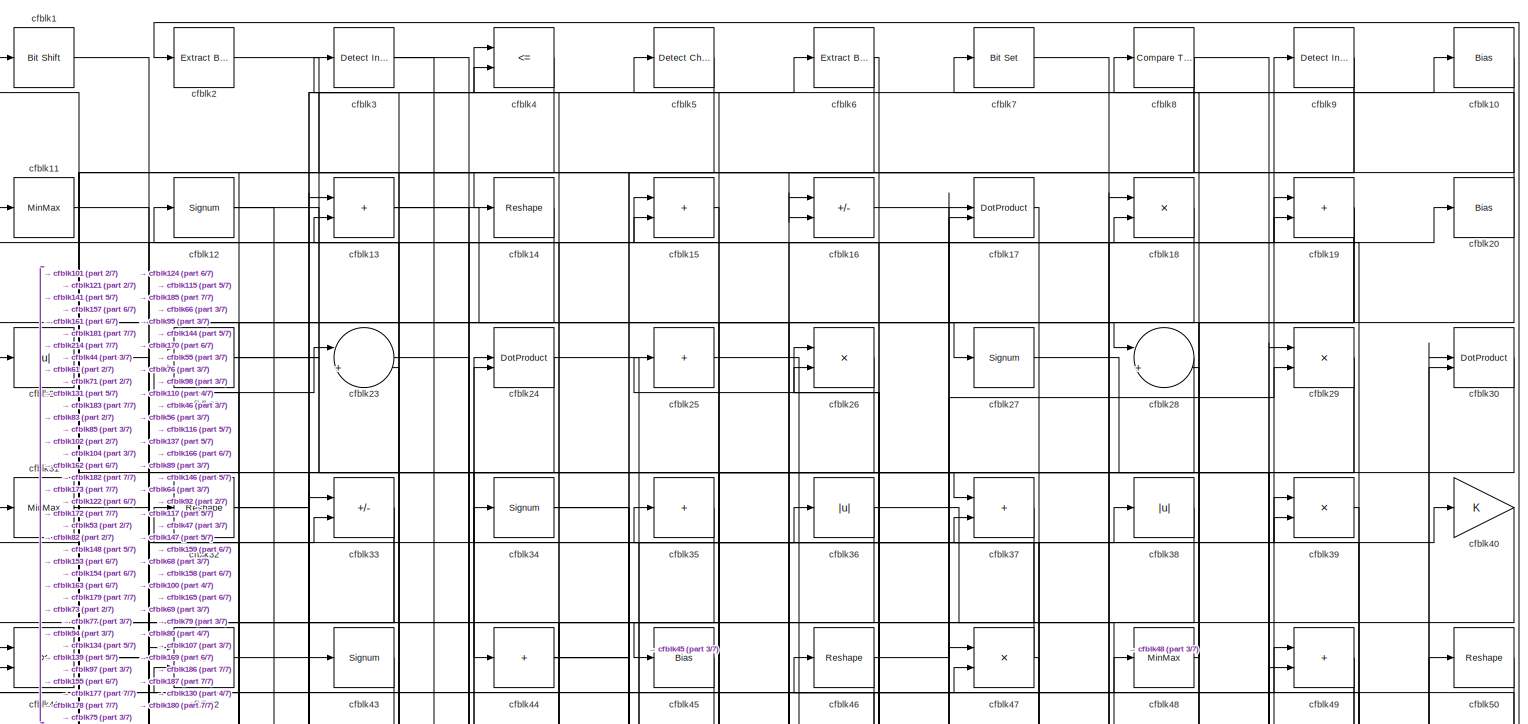
[diagram: root canvas - part 1/7, full width, top band]
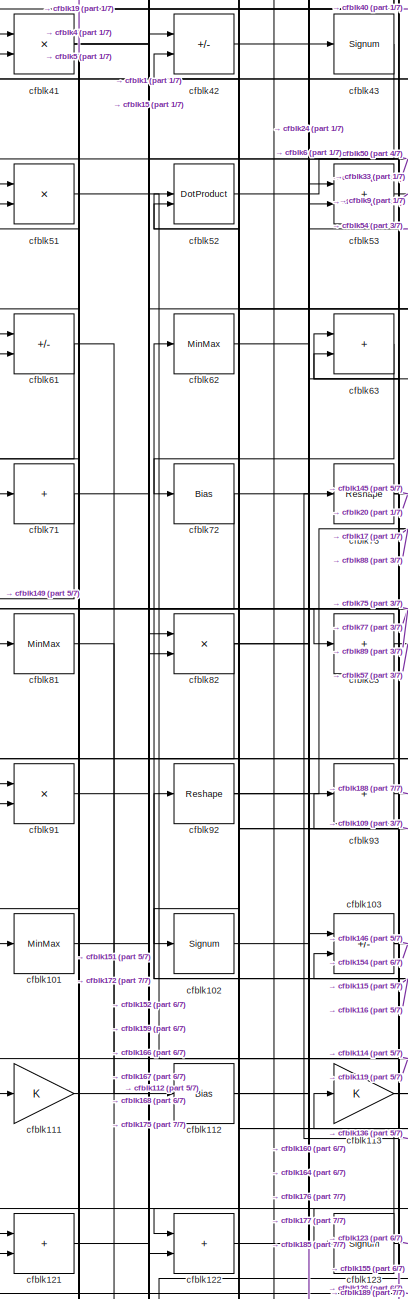
[diagram: root canvas - part 2/7, middle left region]
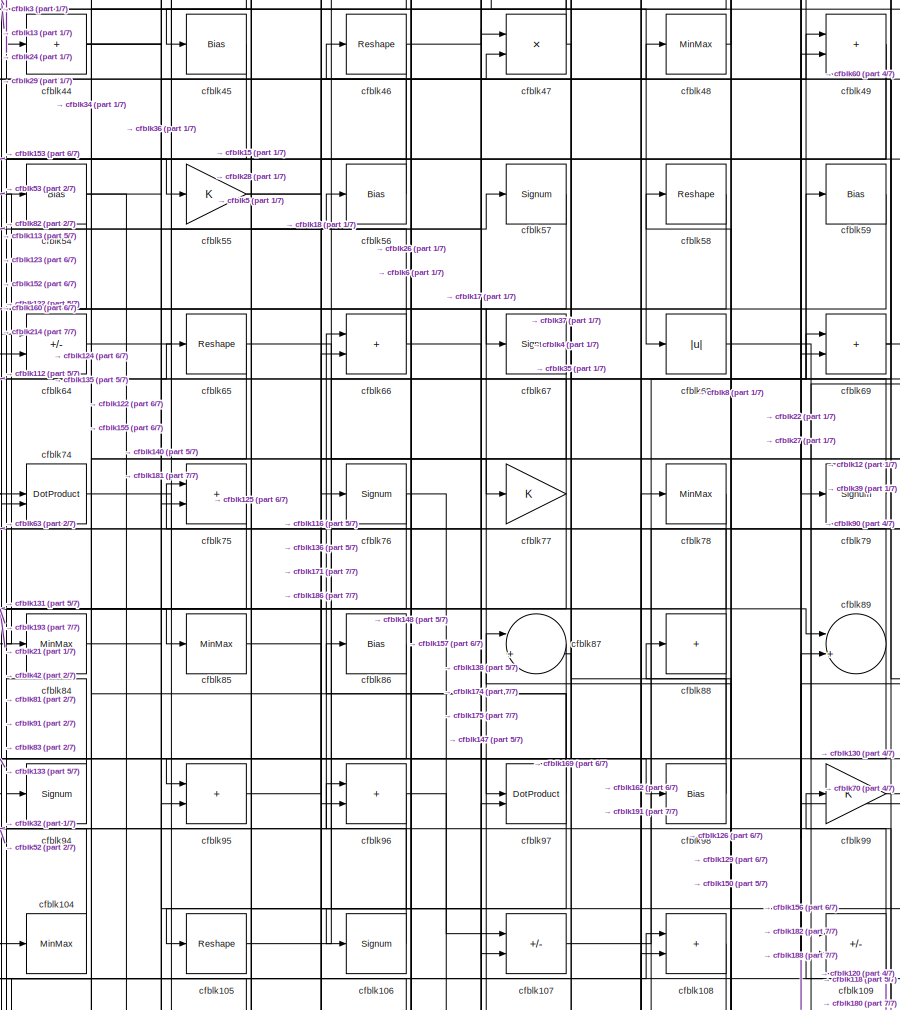
[diagram: root canvas - part 3/7, central region]
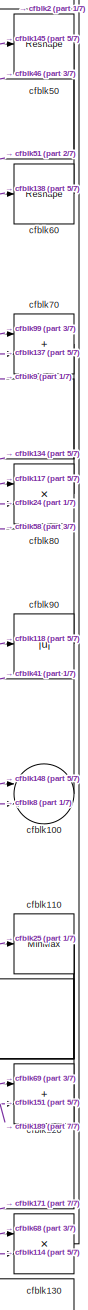
[diagram: root canvas - part 4/7, middle right region]
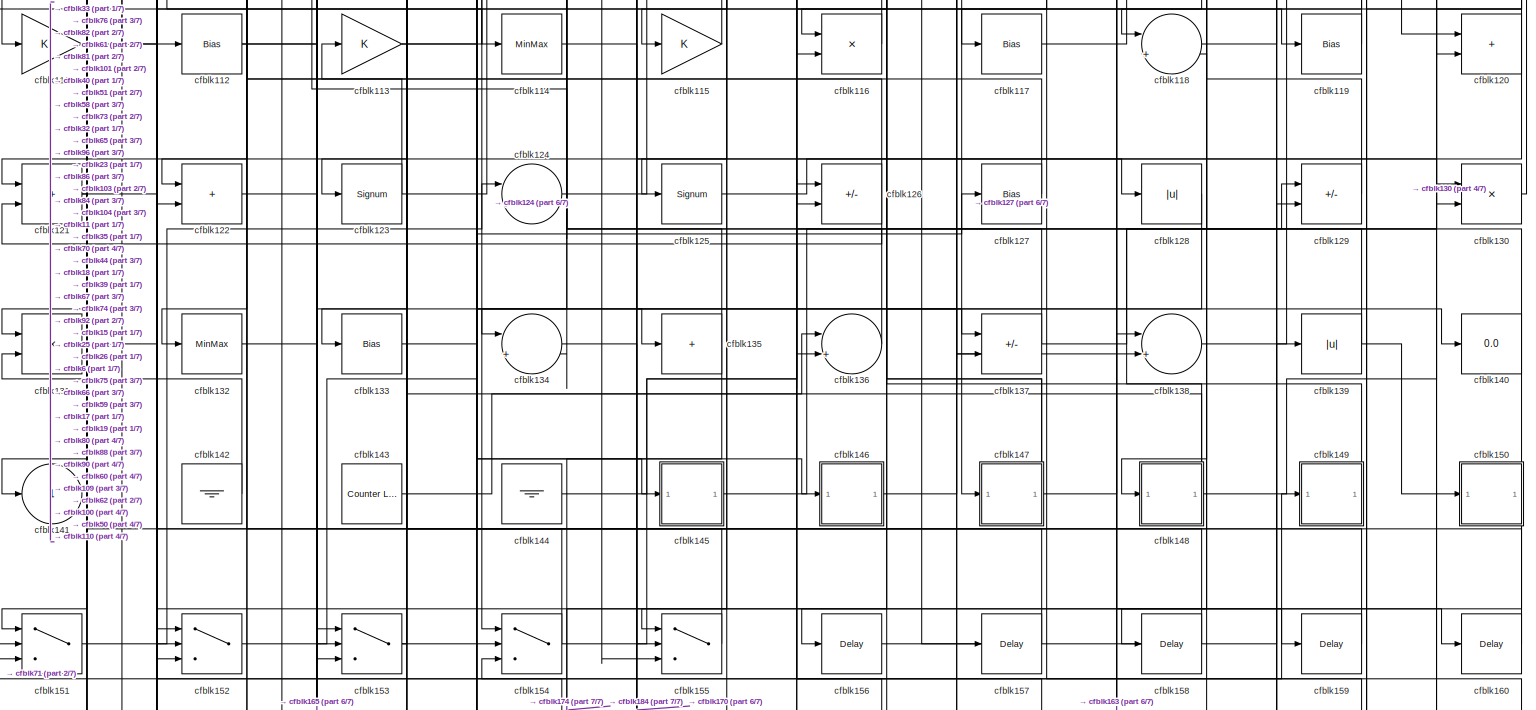
[diagram: root canvas - part 5/7, full width, middle band]
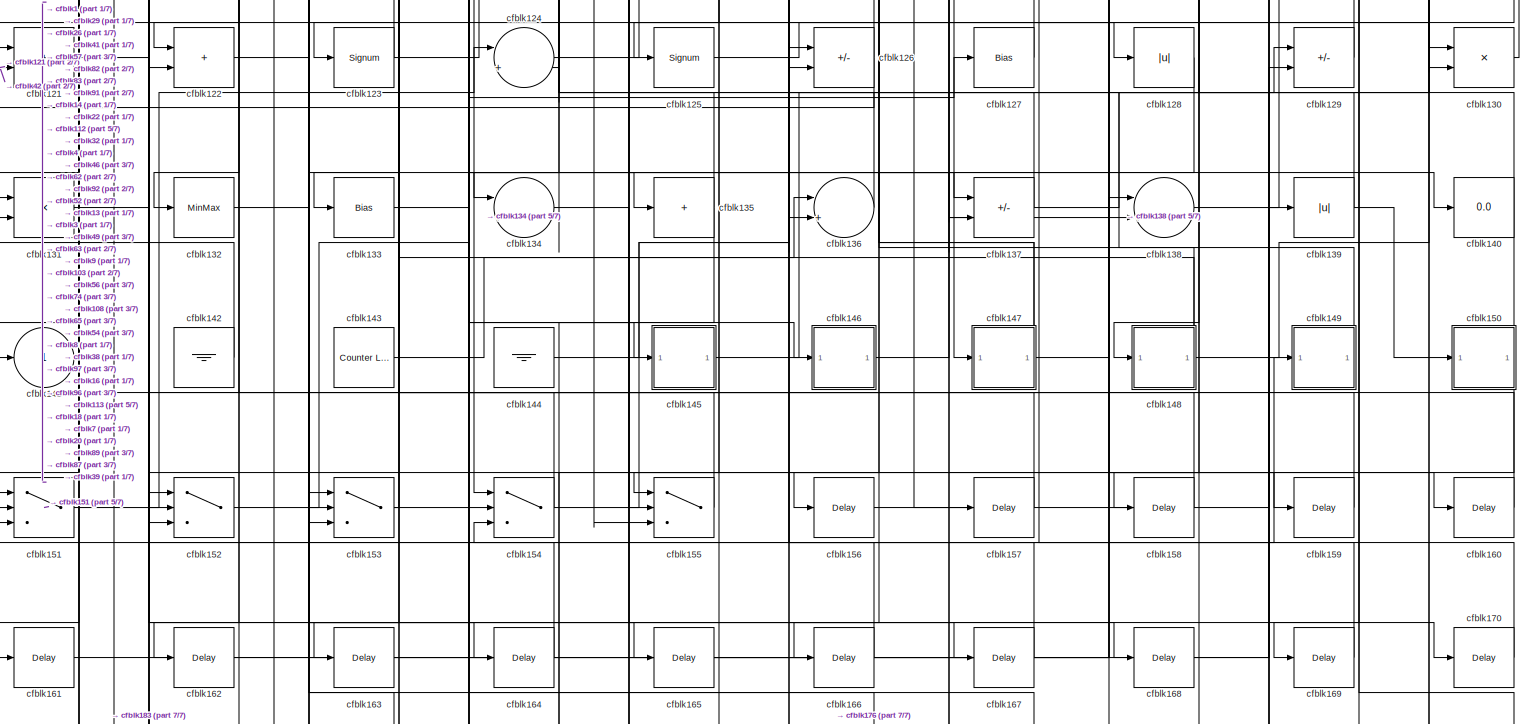
[diagram: root canvas - part 6/7, full width, middle band]
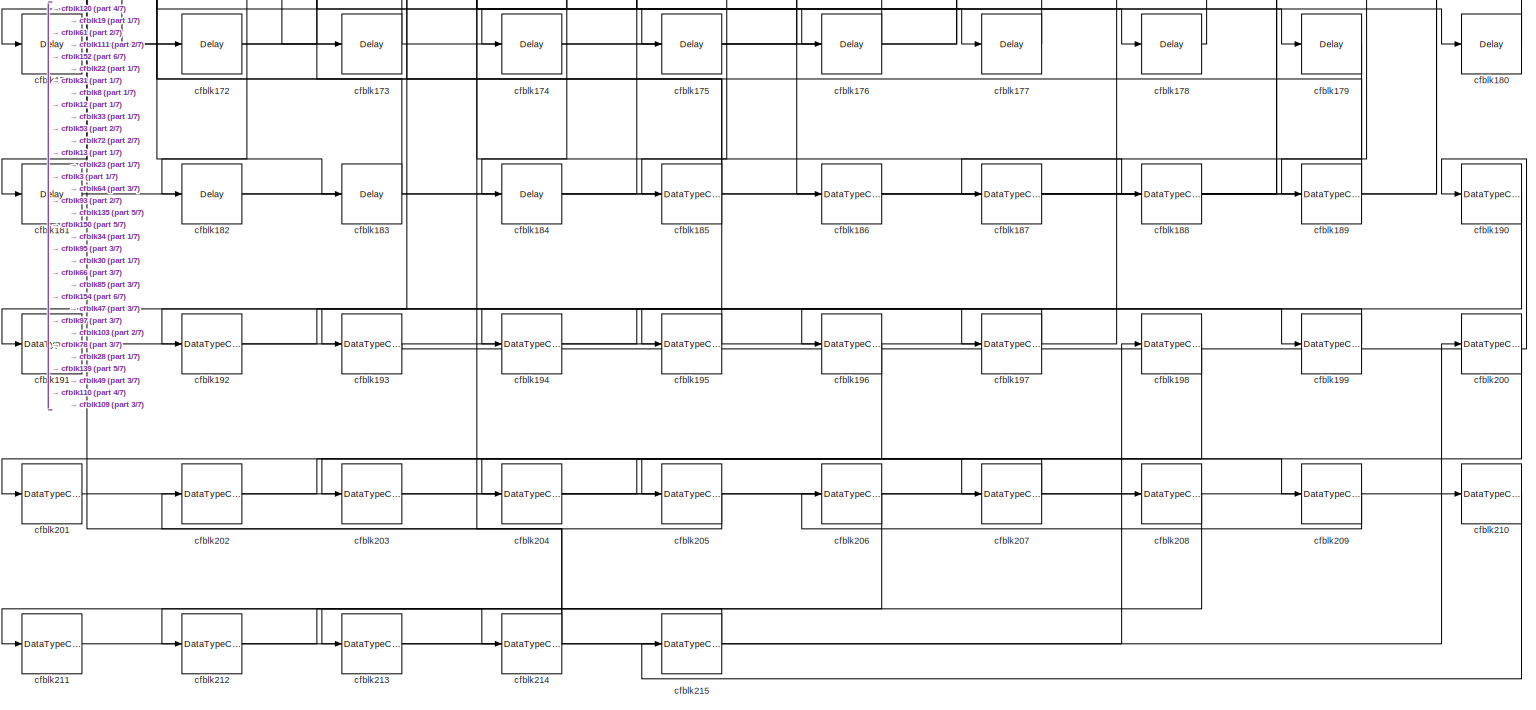
[diagram: root canvas - part 7/7, full width, bottom band]
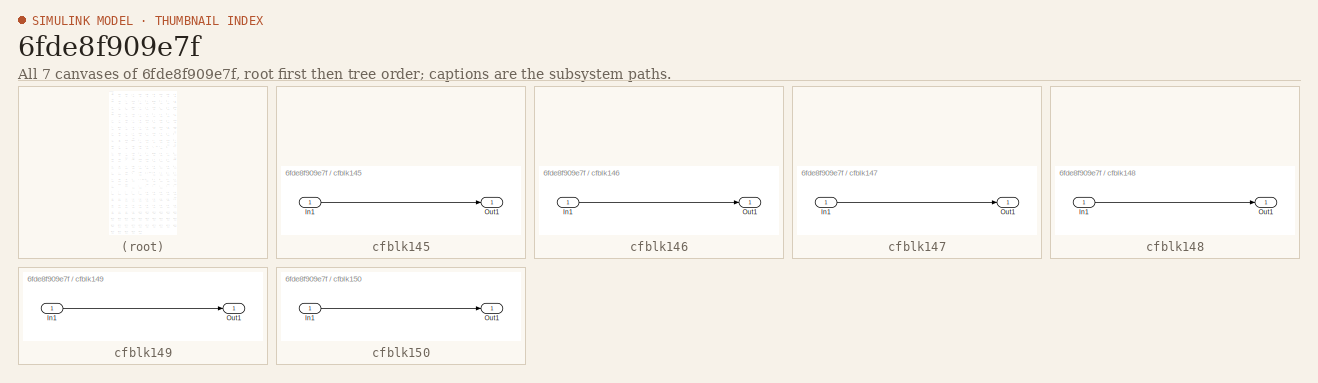
[diagram: thumbnail index - all 7 canvases of the model, root first then tree order]
MODEL slx_6fde8f909e7f
KIND model
CONFIG AbsTol = auto
CONFIG EnableMultiTasking = off
CONFIG FixedStep = auto
CONFIG MaxStep = auto
CONFIG MinStep = auto
CONFIG RelTol = 1e-3
CONFIG SampleTimeConstraint = Unconstrained
CONFIG SolverName = VariableStepAuto
CONFIG StartTime = 0.0
CONFIG StopTime = 10.0
BLOCK [Reference] cfblk1  REF=hdlsllib/Logic and Bit
Operations/Bit Shift
  SourceBlock = hdlsllib/Logic and Bit\nOperations/Bit Shift
  SourceType = Bit Shift
BLOCK [Bias] cfblk10
  Bias = 0.0
  SaturateOnIntegerOverflow = off
BLOCK [Sum] cfblk100
  Inputs = |++
BLOCK [MinMax] cfblk101
BLOCK [Signum] cfblk102
BLOCK [Sum] cfblk103
  IconShape = rectangular
  Inputs = +-
BLOCK [MinMax] cfblk104
BLOCK [Reshape] cfblk105
BLOCK [Signum] cfblk106
BLOCK [Sum] cfblk107
  IconShape = rectangular
  Inputs = +-
BLOCK [Sum] cfblk108
  IconShape = rectangular
BLOCK [Sum] cfblk109
  IconShape = rectangular
  Inputs = +-
BLOCK [MinMax] cfblk11
BLOCK [MinMax] cfblk110
BLOCK [Gain] cfblk111
BLOCK [Bias] cfblk112
  Bias = 0.0
  SaturateOnIntegerOverflow = off
BLOCK [Gain] cfblk113
BLOCK [MinMax] cfblk114
BLOCK [Gain] cfblk115
BLOCK [Product] cfblk116
  Inputs = */
  RndMeth = Zero
  SaturateOnIntegerOverflow = on
BLOCK [Bias] cfblk117
  Bias = 0.0
  SaturateOnIntegerOverflow = off
BLOCK [Sum] cfblk118
  Inputs = |++
BLOCK [Bias] cfblk119
  Bias = 0.0
  SaturateOnIntegerOverflow = off
BLOCK [Signum] cfblk12
BLOCK [Sum] cfblk120
  IconShape = rectangular
BLOCK [Sum] cfblk121
  IconShape = rectangular
BLOCK [Sum] cfblk122
  IconShape = rectangular
BLOCK [Signum] cfblk123
BLOCK [Sum] cfblk124
  Inputs = |++
BLOCK [Signum] cfblk125
BLOCK [Sum] cfblk126
  IconShape = rectangular
  Inputs = +-
BLOCK [Bias] cfblk127
  Bias = 0.0
  SaturateOnIntegerOverflow = off
BLOCK [Abs] cfblk128
  SaturateOnIntegerOverflow = off
BLOCK [Sum] cfblk129
  IconShape = rectangular
  Inputs = +-
BLOCK [Sum] cfblk13
  IconShape = rectangular
BLOCK [Product] cfblk130
  Inputs = */
  RndMeth = Zero
  SaturateOnIntegerOverflow = on
BLOCK [Product] cfblk131
  Inputs = */
  RndMeth = Zero
  SaturateOnIntegerOverflow = on
BLOCK [MinMax] cfblk132
BLOCK [Bias] cfblk133
  Bias = 0.0
  SaturateOnIntegerOverflow = off
BLOCK [Sum] cfblk134
  Inputs = |++
BLOCK [Sum] cfblk135
  IconShape = rectangular
  Inputs = +
BLOCK [Sum] cfblk136
  Inputs = |++
BLOCK [Sum] cfblk137
  IconShape = rectangular
  Inputs = +-
BLOCK [Sum] cfblk138
  Inputs = |++
BLOCK [Abs] cfblk139
  SaturateOnIntegerOverflow = off
BLOCK [Reshape] cfblk14
BLOCK [Display] cfblk140
  Decimation = 1
BLOCK [Outport] cfblk141
  VectorParamsAs1DForOutWhenUnconnected = off
BLOCK [Ground] cfblk142
BLOCK [Reference] cfblk143  REF=hdlsllib/Sources/Counter
Limited
  SourceBlock = hdlsllib/Sources/Counter\nLimited
  SourceType = Counter Limited
BLOCK [Ground] cfblk144
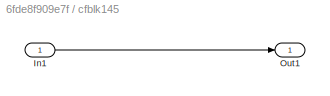
BLOCK [SubSystem] cfblk145
  LibrarySourceBlock = hdlsllib/Ports &\nSubsystems/Subsystem
BLOCK [Inport] cfblk145/In1
BLOCK [Outport] cfblk145/Out1
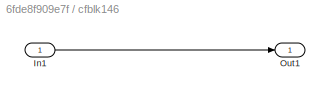
BLOCK [SubSystem] cfblk146
  LibrarySourceBlock = hdlsllib/Ports &\nSubsystems/Subsystem
BLOCK [Inport] cfblk146/In1
BLOCK [Outport] cfblk146/Out1
BLOCK [SubSystem] cfblk147
  LibrarySourceBlock = hdlsllib/Ports &\nSubsystems/Subsystem
BLOCK [Inport] cfblk147/In1
BLOCK [Outport] cfblk147/Out1
BLOCK [SubSystem] cfblk148
  LibrarySourceBlock = hdlsllib/Ports &\nSubsystems/Subsystem
BLOCK [Inport] cfblk148/In1
BLOCK [Outport] cfblk148/Out1
BLOCK [SubSystem] cfblk149
  LibrarySourceBlock = hdlsllib/Ports &\nSubsystems/Subsystem
BLOCK [Inport] cfblk149/In1
BLOCK [Outport] cfblk149/Out1
BLOCK [Sum] cfblk15
  IconShape = rectangular
BLOCK [SubSystem] cfblk150
  LibrarySourceBlock = hdlsllib/Ports &\nSubsystems/Subsystem
BLOCK [Inport] cfblk150/In1
BLOCK [Outport] cfblk150/Out1
BLOCK [Switch] cfblk151
  InputSameDT = off
  SaturateOnIntegerOverflow = off
BLOCK [Switch] cfblk152
  InputSameDT = off
  SaturateOnIntegerOverflow = off
BLOCK [Switch] cfblk153
  InputSameDT = off
  SaturateOnIntegerOverflow = off
BLOCK [Switch] cfblk154
  InputSameDT = off
  SaturateOnIntegerOverflow = off
BLOCK [Switch] cfblk155
  InputSameDT = off
  SaturateOnIntegerOverflow = off
BLOCK [Delay] cfblk156
  InputPortMap = u0
  SampleTime = 1
BLOCK [Delay] cfblk157
  InputPortMap = u0
  SampleTime = 1
BLOCK [Delay] cfblk158
  InputPortMap = u0
  SampleTime = 1
BLOCK [Delay] cfblk159
  InputPortMap = u0
  SampleTime = 1
BLOCK [Sum] cfblk16
  IconShape = rectangular
  Inputs = +-
BLOCK [Delay] cfblk160
  InputPortMap = u0
  SampleTime = 1
BLOCK [Delay] cfblk161
  InputPortMap = u0
  SampleTime = 1
BLOCK [Delay] cfblk162
  InputPortMap = u0
  SampleTime = 1
BLOCK [Delay] cfblk163
  InputPortMap = u0
  SampleTime = 1
BLOCK [Delay] cfblk164
  InputPortMap = u0
  SampleTime = 1
BLOCK [Delay] cfblk165
  InputPortMap = u0
  SampleTime = 1
BLOCK [Delay] cfblk166
  InputPortMap = u0
  SampleTime = 1
BLOCK [Delay] cfblk167
  InputPortMap = u0
  SampleTime = 1
BLOCK [Delay] cfblk168
  InputPortMap = u0
  SampleTime = 1
BLOCK [Delay] cfblk169
  InputPortMap = u0
  SampleTime = 1
BLOCK [DotProduct] cfblk17
  OutDataTypeStr = Inherit: Inherit via internal rule
BLOCK [Delay] cfblk170
  InputPortMap = u0
  SampleTime = 1
BLOCK [Delay] cfblk171
  InputPortMap = u0
  SampleTime = 1
BLOCK [Delay] cfblk172
  InputPortMap = u0
  SampleTime = 1
BLOCK [Delay] cfblk173
  InputPortMap = u0
  SampleTime = 1
BLOCK [Delay] cfblk174
  InputPortMap = u0
  SampleTime = 1
BLOCK [Delay] cfblk175
  InputPortMap = u0
  SampleTime = 1
BLOCK [Delay] cfblk176
  InputPortMap = u0
  SampleTime = 1
BLOCK [Delay] cfblk177
  InputPortMap = u0
  SampleTime = 1
BLOCK [Delay] cfblk178
  InputPortMap = u0
  SampleTime = 1
BLOCK [Delay] cfblk179
  InputPortMap = u0
  SampleTime = 1
BLOCK [Product] cfblk18
  Inputs = */
  RndMeth = Zero
  SaturateOnIntegerOverflow = on
BLOCK [Delay] cfblk180
  InputPortMap = u0
  SampleTime = 1
BLOCK [Delay] cfblk181
  InputPortMap = u0
  SampleTime = 1
BLOCK [Delay] cfblk182
  InputPortMap = u0
  SampleTime = 1
BLOCK [Delay] cfblk183
  InputPortMap = u0
  SampleTime = 1
BLOCK [Delay] cfblk184
  InputPortMap = u0
  SampleTime = 1
BLOCK [DataTypeConversion] cfblk185
  RndMeth = Floor
  SaturateOnIntegerOverflow = off
BLOCK [DataTypeConversion] cfblk186
  OutDataTypeStr = uint8
  RndMeth = Floor
  SaturateOnIntegerOverflow = off
BLOCK [DataTypeConversion] cfblk187
  OutDataTypeStr = uint8
  RndMeth = Floor
  SaturateOnIntegerOverflow = off
BLOCK [DataTypeConversion] cfblk188
  OutDataTypeStr = uint8
  RndMeth = Floor
  SaturateOnIntegerOverflow = off
BLOCK [DataTypeConversion] cfblk189
  OutDataTypeStr = uint8
  RndMeth = Floor
  SaturateOnIntegerOverflow = off
BLOCK [Sum] cfblk19
  IconShape = rectangular
BLOCK [DataTypeConversion] cfblk190
  RndMeth = Floor
  SaturateOnIntegerOverflow = off
BLOCK [DataTypeConversion] cfblk191
  OutDataTypeStr = uint8
  RndMeth = Floor
  SaturateOnIntegerOverflow = off
BLOCK [DataTypeConversion] cfblk192
  RndMeth = Floor
  SaturateOnIntegerOverflow = off
BLOCK [DataTypeConversion] cfblk193
  OutDataTypeStr = uint8
  RndMeth = Floor
  SaturateOnIntegerOverflow = off
BLOCK [DataTypeConversion] cfblk194
  RndMeth = Floor
  SaturateOnIntegerOverflow = off
BLOCK [DataTypeConversion] cfblk195
  OutDataTypeStr = uint8
  RndMeth = Floor
  SaturateOnIntegerOverflow = off
BLOCK [DataTypeConversion] cfblk196
  RndMeth = Floor
  SaturateOnIntegerOverflow = off
BLOCK [DataTypeConversion] cfblk197
  OutDataTypeStr = uint8
  RndMeth = Floor
  SaturateOnIntegerOverflow = off
BLOCK [DataTypeConversion] cfblk198
  RndMeth = Floor
  SaturateOnIntegerOverflow = off
BLOCK [DataTypeConversion] cfblk199
  OutDataTypeStr = uint8
  RndMeth = Floor
  SaturateOnIntegerOverflow = off
BLOCK [Reference] cfblk2  REF=simulink/Logic and Bit
Operations/Extract Bits
  LibrarySourceBlock = hdlsllib/Logic and Bit\nOperations/Extract Bits
  SourceBlock = simulink/Logic and Bit\nOperations/Extract Bits
  SourceType = Extract Bits
BLOCK [Bias] cfblk20
  Bias = 0.0
  SaturateOnIntegerOverflow = off
BLOCK [DataTypeConversion] cfblk200
  RndMeth = Floor
  SaturateOnIntegerOverflow = off
BLOCK [DataTypeConversion] cfblk201
  OutDataTypeStr = uint8
  RndMeth = Floor
  SaturateOnIntegerOverflow = off
BLOCK [DataTypeConversion] cfblk202
  RndMeth = Floor
  SaturateOnIntegerOverflow = off
BLOCK [DataTypeConversion] cfblk203
  OutDataTypeStr = uint8
  RndMeth = Floor
  SaturateOnIntegerOverflow = off
BLOCK [DataTypeConversion] cfblk204
  RndMeth = Floor
  SaturateOnIntegerOverflow = off
BLOCK [DataTypeConversion] cfblk205
  OutDataTypeStr = uint8
  RndMeth = Floor
  SaturateOnIntegerOverflow = off
BLOCK [DataTypeConversion] cfblk206
  RndMeth = Floor
  SaturateOnIntegerOverflow = off
BLOCK [DataTypeConversion] cfblk207
  OutDataTypeStr = uint8
  RndMeth = Floor
  SaturateOnIntegerOverflow = off
BLOCK [DataTypeConversion] cfblk208
  RndMeth = Floor
  SaturateOnIntegerOverflow = off
BLOCK [DataTypeConversion] cfblk209
  OutDataTypeStr = uint8
  RndMeth = Floor
  SaturateOnIntegerOverflow = off
BLOCK [Abs] cfblk21
  SaturateOnIntegerOverflow = off
BLOCK [DataTypeConversion] cfblk210
  RndMeth = Floor
  SaturateOnIntegerOverflow = off
BLOCK [DataTypeConversion] cfblk211
  OutDataTypeStr = uint8
  RndMeth = Floor
  SaturateOnIntegerOverflow = off
BLOCK [DataTypeConversion] cfblk212
  RndMeth = Floor
  SaturateOnIntegerOverflow = off
BLOCK [DataTypeConversion] cfblk213
  OutDataTypeStr = uint8
  RndMeth = Floor
  SaturateOnIntegerOverflow = off
BLOCK [DataTypeConversion] cfblk214
  RndMeth = Floor
  SaturateOnIntegerOverflow = off
BLOCK [DataTypeConversion] cfblk215
  OutDataTypeStr = uint8
  RndMeth = Floor
  SaturateOnIntegerOverflow = off
BLOCK [Sum] cfblk22
  IconShape = rectangular
BLOCK [Sum] cfblk23
  Inputs = |++
BLOCK [DotProduct] cfblk24
  OutDataTypeStr = Inherit: Inherit via internal rule
BLOCK [Sum] cfblk25
  IconShape = rectangular
  Inputs = +
BLOCK [Product] cfblk26
  Inputs = */
  RndMeth = Zero
  SaturateOnIntegerOverflow = on
BLOCK [Signum] cfblk27
BLOCK [Sum] cfblk28
  Inputs = |++
BLOCK [Product] cfblk29
  Inputs = */
  RndMeth = Zero
  SaturateOnIntegerOverflow = on
BLOCK [Reference] cfblk3  REF=simulink/Logic and Bit
Operations/Detect
Increase
  LibrarySourceBlock = hdlsllib/Logic and Bit\nOperations/Detect\nIncrease
  SourceBlock = simulink/Logic and Bit\nOperations/Detect\nIncrease
  SourceType = Detect Increase
BLOCK [DotProduct] cfblk30
  OutDataTypeStr = Inherit: Inherit via internal rule
BLOCK [MinMax] cfblk31
BLOCK [Reshape] cfblk32
BLOCK [Sum] cfblk33
  IconShape = rectangular
  Inputs = +-
BLOCK [Signum] cfblk34
BLOCK [Sum] cfblk35
  IconShape = rectangular
  Inputs = +
BLOCK [Abs] cfblk36
  SaturateOnIntegerOverflow = off
BLOCK [Sum] cfblk37
  IconShape = rectangular
BLOCK [Abs] cfblk38
  SaturateOnIntegerOverflow = off
BLOCK [Product] cfblk39
  Inputs = */
  RndMeth = Zero
  SaturateOnIntegerOverflow = on
BLOCK [RelationalOperator] cfblk4
  InputSameDT = off
  Operator = <=
  OutDataTypeStr = boolean
BLOCK [Gain] cfblk40
BLOCK [Product] cfblk41
  Inputs = */
  RndMeth = Zero
  SaturateOnIntegerOverflow = on
BLOCK [Sum] cfblk42
  IconShape = rectangular
  Inputs = +-
BLOCK [Signum] cfblk43
BLOCK [Sum] cfblk44
  IconShape = rectangular
  Inputs = +
BLOCK [Bias] cfblk45
  Bias = 0.0
  SaturateOnIntegerOverflow = off
BLOCK [Reshape] cfblk46
BLOCK [Product] cfblk47
  Inputs = */
  RndMeth = Zero
  SaturateOnIntegerOverflow = on
BLOCK [MinMax] cfblk48
BLOCK [Sum] cfblk49
  IconShape = rectangular
BLOCK [Reference] cfblk5  REF=simulink/Logic and Bit
Operations/Detect
Change
  LibrarySourceBlock = hdlsllib/Logic and Bit\nOperations/Detect\nChange
  SourceBlock = simulink/Logic and Bit\nOperations/Detect\nChange
  SourceType = Detect Change
BLOCK [Reshape] cfblk50
BLOCK [Product] cfblk51
  Inputs = */
  RndMeth = Zero
  SaturateOnIntegerOverflow = on
BLOCK [DotProduct] cfblk52
  OutDataTypeStr = Inherit: Inherit via internal rule
BLOCK [Sum] cfblk53
  IconShape = rectangular
BLOCK [Bias] cfblk54
  Bias = 0.0
  SaturateOnIntegerOverflow = off
BLOCK [Gain] cfblk55
BLOCK [Bias] cfblk56
  Bias = 0.0
  SaturateOnIntegerOverflow = off
BLOCK [Signum] cfblk57
BLOCK [Reshape] cfblk58
BLOCK [Bias] cfblk59
  Bias = 0.0
  SaturateOnIntegerOverflow = off
BLOCK [Reference] cfblk6  REF=simulink/Logic and Bit
Operations/Extract Bits
  LibrarySourceBlock = hdlsllib/Logic and Bit\nOperations/Extract Bits
  SourceBlock = simulink/Logic and Bit\nOperations/Extract Bits
  SourceType = Extract Bits
BLOCK [Reshape] cfblk60
BLOCK [Sum] cfblk61
  IconShape = rectangular
  Inputs = +-
BLOCK [MinMax] cfblk62
BLOCK [Sum] cfblk63
  IconShape = rectangular
BLOCK [Sum] cfblk64
  IconShape = rectangular
  Inputs = +-
BLOCK [Reshape] cfblk65
BLOCK [Sum] cfblk66
  IconShape = rectangular
BLOCK [Signum] cfblk67
BLOCK [Abs] cfblk68
  SaturateOnIntegerOverflow = off
BLOCK [Sum] cfblk69
  IconShape = rectangular
BLOCK [Reference] cfblk7  REF=simulink/Logic and Bit
Operations/Bit Set
  LibrarySourceBlock = hdlsllib/Logic and Bit\nOperations/Bit Set
  SourceBlock = simulink/Logic and Bit\nOperations/Bit Set
  SourceType = Bit Set
BLOCK [Sum] cfblk70
  IconShape = rectangular
BLOCK [Sum] cfblk71
  IconShape = rectangular
  Inputs = +
BLOCK [Bias] cfblk72
  Bias = 0.0
  SaturateOnIntegerOverflow = off
BLOCK [Reshape] cfblk73
BLOCK [DotProduct] cfblk74
  OutDataTypeStr = Inherit: Inherit via internal rule
BLOCK [Sum] cfblk75
  IconShape = rectangular
BLOCK [Signum] cfblk76
BLOCK [Gain] cfblk77
BLOCK [MinMax] cfblk78
BLOCK [Signum] cfblk79
BLOCK [Reference] cfblk8  REF=hdlsllib/Logic and Bit
Operations/Compare
To Constant
  SourceBlock = hdlsllib/Logic and Bit\nOperations/Compare\nTo Constant
  SourceType = Compare To Constant
BLOCK [Product] cfblk80
  Inputs = */
  RndMeth = Zero
  SaturateOnIntegerOverflow = on
BLOCK [MinMax] cfblk81
BLOCK [Product] cfblk82
  Inputs = */
  RndMeth = Zero
  SaturateOnIntegerOverflow = on
BLOCK [Sum] cfblk83
  IconShape = rectangular
  Inputs = +
BLOCK [MinMax] cfblk84
BLOCK [MinMax] cfblk85
BLOCK [Bias] cfblk86
  Bias = 0.0
  SaturateOnIntegerOverflow = off
BLOCK [Sum] cfblk87
  Inputs = |++
BLOCK [Sum] cfblk88
  IconShape = rectangular
  Inputs = +
BLOCK [Sum] cfblk89
  Inputs = |++
BLOCK [Reference] cfblk9  REF=simulink/Logic and Bit
Operations/Detect
Increase
  LibrarySourceBlock = hdlsllib/Logic and Bit\nOperations/Detect\nIncrease
  SourceBlock = simulink/Logic and Bit\nOperations/Detect\nIncrease
  SourceType = Detect Increase
BLOCK [Abs] cfblk90
  SaturateOnIntegerOverflow = off
BLOCK [Product] cfblk91
  Inputs = */
  RndMeth = Zero
  SaturateOnIntegerOverflow = on
BLOCK [Reshape] cfblk92
BLOCK [Sum] cfblk93
  IconShape = rectangular
  Inputs = +
BLOCK [Signum] cfblk94
BLOCK [Sum] cfblk95
  IconShape = rectangular
BLOCK [Sum] cfblk96
  IconShape = rectangular
BLOCK [DotProduct] cfblk97
  OutDataTypeStr = Inherit: Inherit via internal rule
BLOCK [Bias] cfblk98
  Bias = 0.0
  SaturateOnIntegerOverflow = off
BLOCK [Gain] cfblk99
LINE cfblk100:1 -> cfblk41:1
LINE cfblk101:1 -> cfblk114:1
LINE cfblk102:1 -> cfblk43:1
NET cfblk103:1 -> cfblk146:1, cfblk154:1
LINE cfblk104:1 -> cfblk32:1
LINE cfblk105:1 -> cfblk59:1
LINE cfblk106:1 -> cfblk66:1
LINE cfblk107:1 -> cfblk12:1
LINE cfblk108:1 -> cfblk126:2
NET cfblk109:1 -> cfblk118:1, cfblk52:2
LINE cfblk10:1 -> cfblk16:2
NET cfblk110:1 -> cfblk120:2, cfblk151:3, cfblk189:1
LINE cfblk111:1 -> cfblk175:1
NET cfblk112:1 -> cfblk165:1, cfblk65:1
NET cfblk113:1 -> cfblk137:1, cfblk84:1
LINE cfblk114:1 -> cfblk130:2
LINE cfblk115:1 -> cfblk103:2
LINE cfblk116:1 -> cfblk92:1
LINE cfblk117:1 -> cfblk80:1
LINE cfblk118:1 -> cfblk90:1
LINE cfblk119:1 -> cfblk62:1
LINE cfblk11:1 -> cfblk27:1
NET cfblk120:1 -> cfblk171:1, cfblk99:1
NET cfblk121:1 -> cfblk168:1, cfblk51:2
LINE cfblk122:1 -> cfblk4:2
NET cfblk123:1 -> cfblk108:1, cfblk52:1
LINE cfblk124:1 -> cfblk38:1
LINE cfblk125:1 -> cfblk128:1
NET cfblk126:1 -> cfblk121:2, cfblk42:2
LINE cfblk127:1 -> cfblk113:1
LINE cfblk128:1 -> cfblk156:1
LINE cfblk129:1 -> cfblk87:1
NET cfblk12:1 -> cfblk173:1, cfblk37:1
LINE cfblk130:1 -> cfblk2:1
LINE cfblk131:1 -> cfblk40:1
LINE cfblk132:1 -> cfblk96:1
LINE cfblk133:1 -> cfblk135:1
LINE cfblk134:1 -> cfblk170:1
NET cfblk135:1 -> cfblk104:1, cfblk174:1
LINE cfblk136:1 -> cfblk73:1
NET cfblk137:1 -> cfblk26:2, cfblk70:2
LINE cfblk138:1 -> cfblk60:1
NET cfblk139:1 -> cfblk11:1, cfblk150:1
NET cfblk13:1 -> cfblk76:1, cfblk98:1
LINE cfblk142:1 -> cfblk131:2
LINE cfblk143:1 -> cfblk136:1
LINE cfblk144:1 -> cfblk39:1
LINE cfblk145/In1:1 -> cfblk145/Out1:1
LINE cfblk145:1 -> cfblk50:1
LINE cfblk146/In1:1 -> cfblk146/Out1:1
LINE cfblk146:1 -> cfblk19:1
LINE cfblk147/In1:1 -> cfblk147/Out1:1
NET cfblk147:1 -> cfblk15:1, cfblk19:2, cfblk25:1
LINE cfblk148/In1:1 -> cfblk148/Out1:1
NET cfblk148:1 -> cfblk100:1, cfblk23:2, cfblk75:1
LINE cfblk149/In1:1 -> cfblk149/Out1:1
LINE cfblk149:1 -> cfblk118:2
LINE cfblk14:1 -> cfblk162:1
LINE cfblk150/In1:1 -> cfblk150/Out1:1
NET cfblk150:1 -> cfblk184:1, cfblk88:1
LINE cfblk151:1 -> cfblk124:1
LINE cfblk152:1 -> cfblk56:1
NET cfblk153:1 -> cfblk127:1, cfblk13:2
NET cfblk154:1 -> cfblk129:1, cfblk3:1
LINE cfblk155:1 -> cfblk63:1
LINE cfblk156:1 -> cfblk89:2
LINE cfblk157:1 -> cfblk1:1
LINE cfblk158:1 -> cfblk22:2
LINE cfblk159:1 -> cfblk42:1
LINE cfblk15:1 -> cfblk45:1
LINE cfblk160:1 -> cfblk74:1
LINE cfblk161:1 -> cfblk18:1
LINE cfblk162:1 -> cfblk108:2
LINE cfblk163:1 -> cfblk138:1
LINE cfblk164:1 -> cfblk154:3
LINE cfblk165:1 -> cfblk29:1
LINE cfblk166:1 -> cfblk82:1
LINE cfblk167:1 -> cfblk126:1
LINE cfblk168:1 -> cfblk129:2
LINE cfblk169:1 -> cfblk87:2
LINE cfblk16:1 -> cfblk28:1
LINE cfblk170:1 -> cfblk16:1
LINE cfblk171:1 -> cfblk66:2
LINE cfblk172:1 -> cfblk33:1
LINE cfblk173:1 -> cfblk13:1
LINE cfblk174:1 -> cfblk97:2
LINE cfblk175:1 -> cfblk47:1
LINE cfblk176:1 -> cfblk154:2
LINE cfblk177:1 -> cfblk103:1
LINE cfblk178:1 -> cfblk28:2
LINE cfblk179:1 -> cfblk187:1
LINE cfblk17:1 -> cfblk117:1
LINE cfblk180:1 -> cfblk109:2
LINE cfblk181:1 -> cfblk95:2
LINE cfblk182:1 -> cfblk49:2
LINE cfblk183:1 -> cfblk152:1
LINE cfblk184:1 -> cfblk139:1
NET cfblk185:1 -> cfblk191:1, cfblk22:1, cfblk53:1
LINE cfblk186:1 -> cfblk30:1
LINE cfblk187:1 -> cfblk30:2
LINE cfblk188:1 -> cfblk109:1
LINE cfblk189:1 -> cfblk93:1
LINE cfblk18:1 -> cfblk115:1
LINE cfblk190:1 -> cfblk195:1
LINE cfblk191:1 -> cfblk78:1
LINE cfblk192:1 -> cfblk197:1
LINE cfblk193:1 -> cfblk190:1
LINE cfblk194:1 -> cfblk199:1
LINE cfblk195:1 -> cfblk192:1
LINE cfblk196:1 -> cfblk201:1
LINE cfblk197:1 -> cfblk194:1
LINE cfblk198:1 -> cfblk203:1
LINE cfblk199:1 -> cfblk196:1
NET cfblk19:1 -> cfblk148:1, cfblk181:1, cfblk61:2
LINE cfblk1:1 -> cfblk83:1
LINE cfblk200:1 -> cfblk205:1
LINE cfblk201:1 -> cfblk198:1
LINE cfblk202:1 -> cfblk207:1
LINE cfblk203:1 -> cfblk200:1
LINE cfblk204:1 -> cfblk209:1
LINE cfblk205:1 -> cfblk202:1
LINE cfblk206:1 -> cfblk211:1
LINE cfblk207:1 -> cfblk204:1
LINE cfblk208:1 -> cfblk213:1
LINE cfblk209:1 -> cfblk206:1
NET cfblk20:1 -> cfblk158:1, cfblk7:1
LINE cfblk210:1 -> cfblk215:1
LINE cfblk211:1 -> cfblk208:1
LINE cfblk212:1 -> cfblk214:1
LINE cfblk213:1 -> cfblk210:1
NET cfblk214:1 -> cfblk31:1, cfblk64:1
LINE cfblk215:1 -> cfblk212:1
LINE cfblk21:1 -> cfblk85:1
NET cfblk22:1 -> cfblk10:1, cfblk69:2
LINE cfblk23:1 -> cfblk179:1
NET cfblk24:1 -> cfblk53:2, cfblk80:2
LINE cfblk25:1 -> cfblk110:1
LINE cfblk26:1 -> cfblk122:2
LINE cfblk27:1 -> cfblk79:1
LINE cfblk28:1 -> cfblk95:1
NET cfblk29:1 -> cfblk161:1, cfblk44:1
LINE cfblk2:1 -> cfblk14:1
LINE cfblk30:1 -> cfblk185:1
LINE cfblk31:1 -> cfblk183:1
NET cfblk32:1 -> cfblk137:2, cfblk153:1
NET cfblk33:1 -> cfblk102:1, cfblk141:1
NET cfblk34:1 -> cfblk177:1, cfblk178:1
LINE cfblk35:1 -> cfblk134:1
NET cfblk36:1 -> cfblk41:2, cfblk68:1
LINE cfblk37:1 -> cfblk94:1
LINE cfblk38:1 -> cfblk166:1
LINE cfblk39:1 -> cfblk169:1
NET cfblk3:1 -> cfblk180:1, cfblk64:2
LINE cfblk40:1 -> cfblk61:1
NET cfblk41:1 -> cfblk153:2, cfblk23:1, cfblk33:2
LINE cfblk42:1 -> cfblk89:1
LINE cfblk43:1 -> cfblk82:2
NET cfblk44:1 -> cfblk107:2, cfblk140:1, cfblk36:1
LINE cfblk45:1 -> cfblk74:2
NET cfblk46:1 -> cfblk153:3, cfblk29:2
NET cfblk47:1 -> cfblk4:1, cfblk97:1
LINE cfblk48:1 -> cfblk8:1
NET cfblk49:1 -> cfblk123:1, cfblk96:2
LINE cfblk4:1 -> cfblk121:1
LINE cfblk50:1 -> cfblk51:1
LINE cfblk51:1 -> cfblk119:1
LINE cfblk52:1 -> cfblk55:1
LINE cfblk53:1 -> cfblk67:1
NET cfblk54:1 -> cfblk122:1, cfblk155:3, cfblk47:2
NET cfblk55:1 -> cfblk18:2, cfblk48:1
LINE cfblk56:1 -> cfblk21:1
LINE cfblk57:1 -> cfblk152:2
LINE cfblk58:1 -> cfblk132:1
LINE cfblk59:1 -> cfblk147:1
LINE cfblk5:1 -> cfblk71:1
LINE cfblk60:1 -> cfblk46:1
NET cfblk61:1 -> cfblk151:2, cfblk172:1
LINE cfblk62:1 -> cfblk160:1
LINE cfblk63:1 -> cfblk72:1
LINE cfblk64:1 -> cfblk17:2
NET cfblk65:1 -> cfblk124:2, cfblk77:1
NET cfblk66:1 -> cfblk138:2, cfblk5:1
LINE cfblk67:1 -> cfblk116:2
LINE cfblk68:1 -> cfblk130:1
NET cfblk69:1 -> cfblk120:1, cfblk39:2
NET cfblk6:1 -> cfblk116:1, cfblk75:2
LINE cfblk70:1 -> cfblk134:2
NET cfblk71:1 -> cfblk149:1, cfblk15:2
NET cfblk72:1 -> cfblk111:1, cfblk176:1
NET cfblk73:1 -> cfblk145:1, cfblk20:1
LINE cfblk74:1 -> cfblk136:2
LINE cfblk75:1 -> cfblk81:1
NET cfblk76:1 -> cfblk107:1, cfblk131:1
NET cfblk77:1 -> cfblk24:2, cfblk91:1
LINE cfblk78:1 -> cfblk193:1
LINE cfblk79:1 -> cfblk37:2
LINE cfblk7:1 -> cfblk159:1
LINE cfblk80:1 -> cfblk9:1
LINE cfblk81:1 -> cfblk112:1
NET cfblk82:1 -> cfblk151:1, cfblk54:1, cfblk6:1
NET cfblk83:1 -> cfblk152:3, cfblk57:1
LINE cfblk84:1 -> cfblk69:1
LINE cfblk85:1 -> cfblk186:1
LINE cfblk86:1 -> cfblk133:1
LINE cfblk87:1 -> cfblk106:1
NET cfblk88:1 -> cfblk63:2, cfblk91:2
NET cfblk89:1 -> cfblk105:1, cfblk26:1
NET cfblk8:1 -> cfblk100:2, cfblk155:2, cfblk182:1
LINE cfblk90:1 -> cfblk58:1
LINE cfblk91:1 -> cfblk167:1
NET cfblk92:1 -> cfblk164:1, cfblk17:1
LINE cfblk93:1 -> cfblk188:1
LINE cfblk94:1 -> cfblk24:1
LINE cfblk95:1 -> cfblk49:1
NET cfblk96:1 -> cfblk125:1, cfblk157:1
NET cfblk97:1 -> cfblk155:1, cfblk34:1, cfblk86:1
LINE cfblk98:1 -> cfblk35:1
LINE cfblk99:1 -> cfblk70:1
NET cfblk9:1 -> cfblk101:1, cfblk163:1
note: NET lines group one-source signal fan-out (src -> all destinations, sorted); 1:1 wires keep LINE
